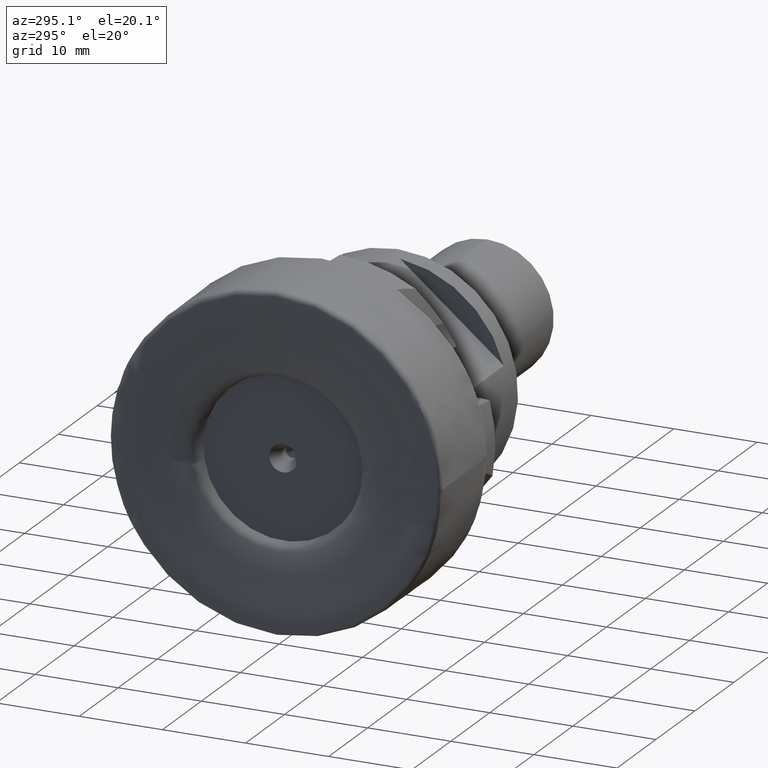
[diagram: clean part render]
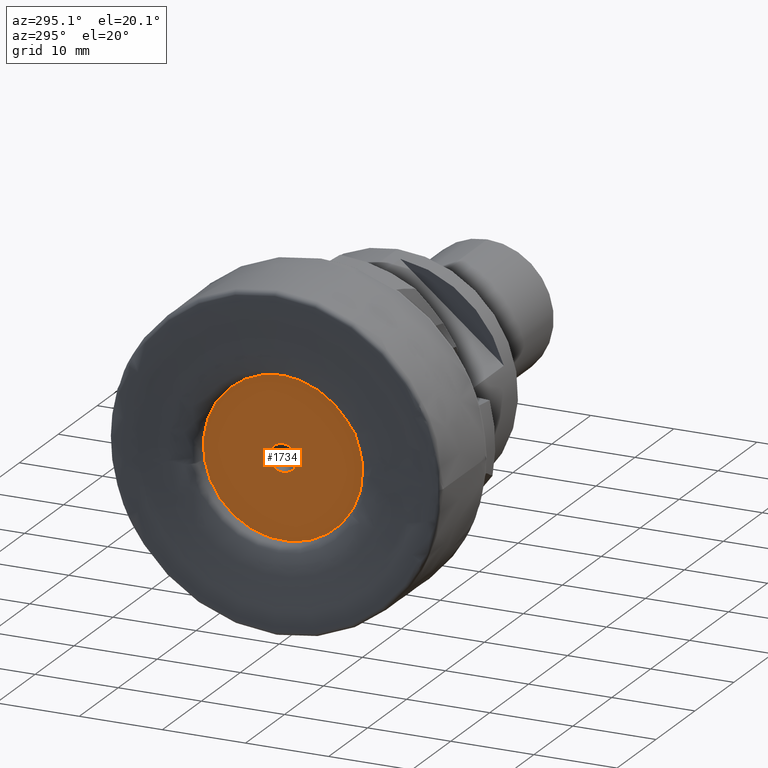
[diagram: same view with one face highlighted and labeled with its STEP entity id]
A machine part, auxiliary view. The second image highlights one B-rep face of the part: STEP entity #1734.
In plain terms, the highlighted planar face has unit normal (-1, 0, -0).
Its self-contained STEP definition (entity closure, byte-faithful):
#134 = AXIS2_PLACEMENT_3D ( 'NONE', #4384, #2247, #139 ) ;
#139 = DIRECTION ( 'NONE',  ( 0.0000000000000000000, 0.0000000000000000000, 1.000000000000000000 ) ) ;
#917 = DIRECTION ( 'NONE',  ( -1.000000000000000000, 0.0000000000000000000, -0.0000000000000000000 ) ) ;
#1073 = EDGE_LOOP ( 'NONE', ( #3087 ) ) ;
#1106 = ORIENTED_EDGE ( 'NONE', *, *, #1520, .F. ) ;
#1264 = DIRECTION ( 'NONE',  ( -1.000000000000000000, -0.0000000000000000000, -0.0000000000000000000 ) ) ;
#1415 = CIRCLE ( 'NONE', #134, 9.599139569578881000 ) ;
#1520 = EDGE_CURVE ( 'NONE', #2951, #2951, #1415, .T. ) ;
#1697 = EDGE_CURVE ( 'NONE', #2037, #2037, #4424, .T. ) ;
#1734 = ADVANCED_FACE ( 'NONE', ( #4216, #4046 ), #2335, .T. ) ;
#1828 = CARTESIAN_POINT ( 'NONE',  ( 0.9999999999999997800, 0.0000000000000000000, 1.675000000000000000 ) ) ;
#2037 = VERTEX_POINT ( 'NONE', #1828 ) ;
#2226 = EDGE_LOOP ( 'NONE', ( #1106 ) ) ;
#2247 = DIRECTION ( 'NONE',  ( 1.000000000000000000, 0.0000000000000000000, 0.0000000000000000000 ) ) ;
#2262 = AXIS2_PLACEMENT_3D ( 'NONE', #3397, #1264, #3763 ) ;
#2335 = PLANE ( 'NONE',  #3696 ) ;
#2951 = VERTEX_POINT ( 'NONE', #3982 ) ;
#3050 = CARTESIAN_POINT ( 'NONE',  ( 1.000000000000000400, 11.84450000000000000, 0.0000000000000000000 ) ) ;
#3087 = ORIENTED_EDGE ( 'NONE', *, *, #1697, .F. ) ;
#3397 = CARTESIAN_POINT ( 'NONE',  ( 0.9999999999999997800, 0.0000000000000000000, 0.0000000000000000000 ) ) ;
#3408 = DIRECTION ( 'NONE',  ( -0.0000000000000000000, 0.0000000000000000000, 1.000000000000000000 ) ) ;
#3696 = AXIS2_PLACEMENT_3D ( 'NONE', #3050, #917, #3408 ) ;
#3763 = DIRECTION ( 'NONE',  ( 0.0000000000000000000, 0.0000000000000000000, 1.000000000000000000 ) ) ;
#3982 = CARTESIAN_POINT ( 'NONE',  ( 0.9999999999995914400, 0.0000000000000000000, 9.599139569578881000 ) ) ;
#4046 = FACE_BOUND ( 'NONE', #1073, .T. ) ;
#4216 = FACE_OUTER_BOUND ( 'NONE', #2226, .T. ) ;
#4384 = CARTESIAN_POINT ( 'NONE',  ( 0.9999999999995914400, 0.0000000000000000000, 0.0000000000000000000 ) ) ;
#4424 = CIRCLE ( 'NONE', #2262, 1.675000000000000000 ) ;